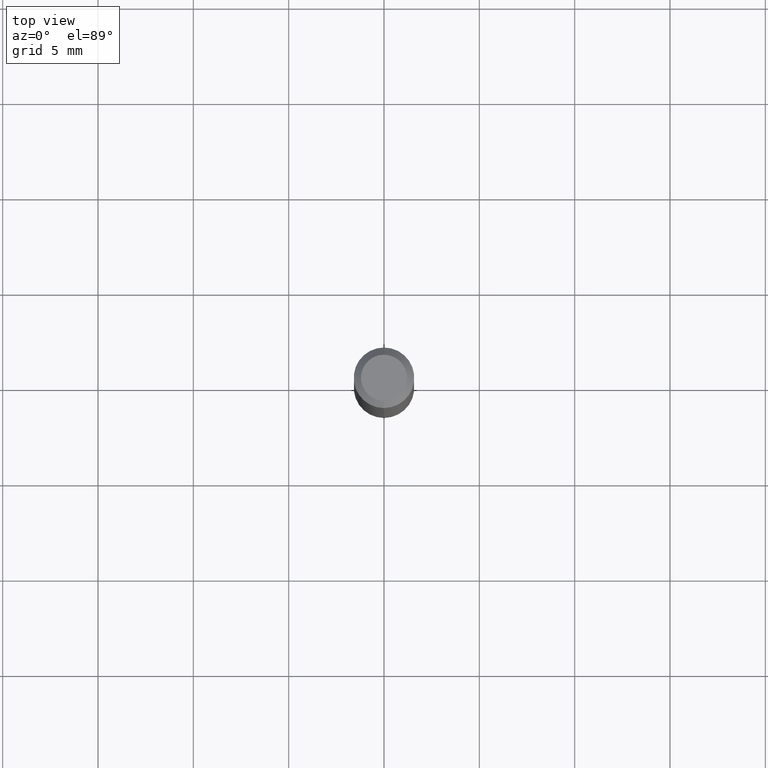
[diagram: clean part render]
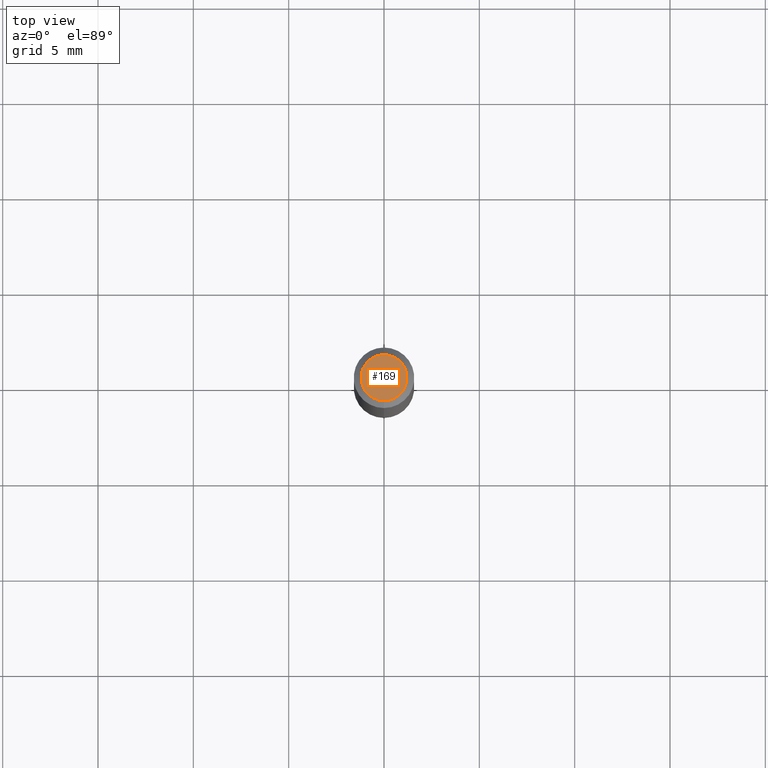
[diagram: same view with one face highlighted and labeled with its STEP entity id]
A machine part, top view. The second image highlights one B-rep face of the part: STEP entity #169.
In plain terms, the highlighted planar face has unit normal (0, -0, -1).
Its self-contained STEP definition (entity closure, byte-faithful):
#30 = CARTESIAN_POINT ( 'NONE',  ( 3.840629472727450339E-16, 0.04750000000000004219, -5.999736927781643760E-16 ) ) ;
#38 = CARTESIAN_POINT ( 'NONE',  ( 1.061622581430208441E-44, -1.515766766971484424E-30, -4.341255305011652876E-16 ) ) ;
#54 = FACE_OUTER_BOUND ( 'NONE', #136, .T. ) ;
#71 = DIRECTION ( 'NONE',  ( -6.982962677686265133E-15, -1.000000000000000000, 3.491540258463135155E-15 ) ) ;
#98 = VERTEX_POINT ( 'NONE', #386 ) ;
#100 = DIRECTION ( 'NONE',  ( 2.445427662834399019E-29, -3.491540258463135549E-15, -1.000000000000000000 ) ) ;
#133 = CIRCLE ( 'NONE', #411, 0.04750000000000004219 ) ;
#136 = EDGE_LOOP ( 'NONE', ( #326, #440 ) ) ;
#169 = ADVANCED_FACE ( 'NONE', ( #54 ), #459, .F. ) ;
#183 = EDGE_CURVE ( 'NONE', #371, #98, #499, .T. ) ;
#214 = CARTESIAN_POINT ( 'NONE',  ( 1.061622581430208441E-44, -1.515766766971484424E-30, -4.341255305011652876E-16 ) ) ;
#326 = ORIENTED_EDGE ( 'NONE', *, *, #183, .T. ) ;
#338 = DIRECTION ( 'NONE',  ( -6.982962677686265133E-15, -1.000000000000000000, 3.491540258463135155E-15 ) ) ;
#367 = AXIS2_PLACEMENT_3D ( 'NONE', #495, #100, #372 ) ;
#371 = VERTEX_POINT ( 'NONE', #30 ) ;
#372 = DIRECTION ( 'NONE',  ( 6.982962677686265922E-15, 1.000000000000000000, -3.491540258463135549E-15 ) ) ;
#386 = CARTESIAN_POINT ( 'NONE',  ( -3.773273898774342241E-16, -0.04750000000000004219, -2.682773682241662484E-16 ) ) ;
#411 = AXIS2_PLACEMENT_3D ( 'NONE', #38, #427, #71 ) ;
#427 = DIRECTION ( 'NONE',  ( -2.445427662834399299E-29, 3.491540258463135549E-15, 1.000000000000000000 ) ) ;
#440 = ORIENTED_EDGE ( 'NONE', *, *, #488, .T. ) ;
#459 = PLANE ( 'NONE',  #367 ) ;
#483 = AXIS2_PLACEMENT_3D ( 'NONE', #214, #489, #338 ) ;
#488 = EDGE_CURVE ( 'NONE', #98, #371, #133, .T. ) ;
#489 = DIRECTION ( 'NONE',  ( -2.445427662834399299E-29, 3.491540258463135549E-15, 1.000000000000000000 ) ) ;
#495 = CARTESIAN_POINT ( 'NONE',  ( 3.316907271900979054E-16, 0.04750000000000004219, -3.829109275275817569E-16 ) ) ;
#499 = CIRCLE ( 'NONE', #483, 0.04750000000000004219 ) ;